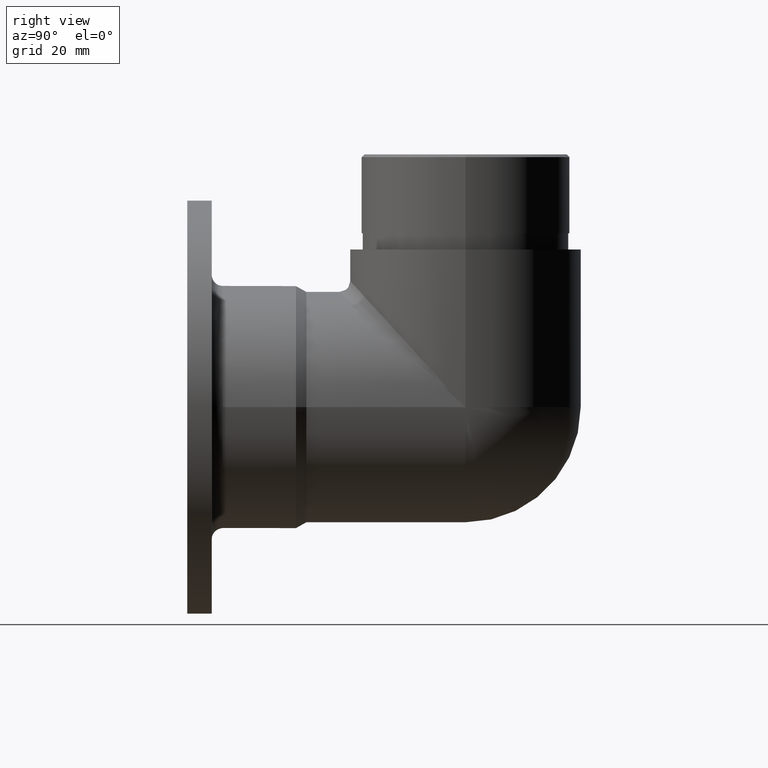
[diagram: clean part render]
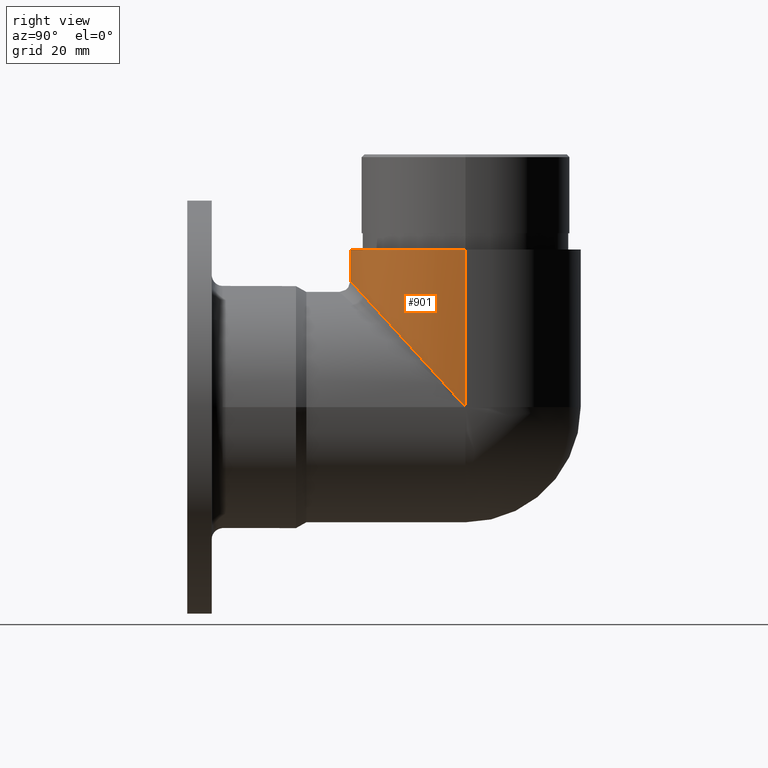
[diagram: same view with one face highlighted and labeled with its STEP entity id]
A machine part, right view. The second image highlights one B-rep face of the part: STEP entity #901.
In plain terms, the highlighted cylindrical surface (partial cylindrical patch) has radius 21.2 mm, axis along (0, -0, 1).
Its self-contained STEP definition (entity closure, byte-faithful):
#239 = CARTESIAN_POINT ( 'NONE',  ( 6.938893903907228400E-015, 30.00000000000002800, 23.19999999999999900 ) ) ;
#417 = EDGE_CURVE ( 'NONE', #12709, #2117, #6216, .T. ) ;
#794 = DIRECTION ( 'NONE',  ( 0.0000000000000000000, -1.000000000000000000, -1.636531581110195400E-016 ) ) ;
#901 = ADVANCED_FACE ( 'NONE', ( #13853 ), #5370, .T. ) ;
#1234 = EDGE_CURVE ( 'NONE', #12709, #9544, #15022, .T. ) ;
#1784 = CARTESIAN_POINT ( 'NONE',  ( 6.938893903907228400E-015, 51.20000000000002400, 21.19999999999999900 ) ) ;
#2117 = VERTEX_POINT ( 'NONE', #13033 ) ;
#2153 = DIRECTION ( 'NONE',  ( 0.0000000000000000000, -2.392722035830079000E-016, 1.000000000000000000 ) ) ;
#2255 = DIRECTION ( 'NONE',  ( 0.0000000000000000000, -2.392722035830079000E-016, 1.000000000000000000 ) ) ;
#5190 = CARTESIAN_POINT ( 'NONE',  ( 21.19999999999999900, 38.78132752230964500, 13.59024535294418700 ) ) ;
#5370 = CYLINDRICAL_SURFACE ( 'NONE', #10740, 21.19999999999999900 ) ;
#5691 = DIRECTION ( 'NONE',  ( 0.0000000000000000000, -2.392722035830079000E-016, 1.000000000000000000 ) ) ;
#6216 =( BOUNDED_CURVE ( )  B_SPLINE_CURVE ( 3, ( #239, #15024, #5190, #13813 ),
 .UNSPECIFIED., .F., .T. ) 
 B_SPLINE_CURVE_WITH_KNOTS ( ( 4, 4 ),
 ( 0.0000000000000000000, 1.570796326794896800 ),
 .UNSPECIFIED. ) 
 CURVE ( )  GEOMETRIC_REPRESENTATION_ITEM ( )  RATIONAL_B_SPLINE_CURVE ( ( 1.000000000000000000, 0.8047378541243649400, 0.8047378541243649400, 1.000000000000000000 ) ) 
 REPRESENTATION_ITEM ( '' )  );
#6282 = CARTESIAN_POINT ( 'NONE',  ( 21.20000000000000600, 51.20000000000002400, -19.38132752230961800 ) ) ;
#6884 = EDGE_CURVE ( 'NONE', #9544, #14321, #15655, .T. ) ;
#7644 = CARTESIAN_POINT ( 'NONE',  ( 6.938893903907228400E-015, 30.00000000000002800, 23.19999999999999900 ) ) ;
#7812 = EDGE_CURVE ( 'NONE', #2117, #14321, #11941, .T. ) ;
#7983 = CARTESIAN_POINT ( 'NONE',  ( 6.938893903907228400E-015, 30.00000000000002500, 28.99999999999998900 ) ) ;
#8111 = ORIENTED_EDGE ( 'NONE', *, *, #1234, .F. ) ;
#9078 = DIRECTION ( 'NONE',  ( 0.0000000000000000000, -1.000000000000000000, -1.636531581110195400E-016 ) ) ;
#9544 = VERTEX_POINT ( 'NONE', #7983 ) ;
#9698 = ORIENTED_EDGE ( 'NONE', *, *, #417, .T. ) ;
#10180 = ORIENTED_EDGE ( 'NONE', *, *, #7812, .T. ) ;
#10740 = AXIS2_PLACEMENT_3D ( 'NONE', #1784, #15259, #9078 ) ;
#11718 = CARTESIAN_POINT ( 'NONE',  ( 21.20000000000000600, 51.20000000000001000, 29.00000000000000000 ) ) ;
#11941 = LINE ( 'NONE', #6282, #13675 ) ;
#12709 = VERTEX_POINT ( 'NONE', #7644 ) ;
#13008 = CARTESIAN_POINT ( 'NONE',  ( 6.938893903907228400E-015, 30.00000000000002800, 21.19999999999999600 ) ) ;
#13033 = CARTESIAN_POINT ( 'NONE',  ( 21.20000000000000600, 51.20000000000002400, -3.469446951953614200E-015 ) ) ;
#13254 = VECTOR ( 'NONE', #5691, 1000.000000000000000 ) ;
#13675 = VECTOR ( 'NONE', #2255, 1000.000000000000000 ) ;
#13714 = ORIENTED_EDGE ( 'NONE', *, *, #6884, .F. ) ;
#13792 = EDGE_LOOP ( 'NONE', ( #8111, #9698, #10180, #13714 ) ) ;
#13813 = CARTESIAN_POINT ( 'NONE',  ( 21.20000000000000600, 51.20000000000002400, -3.469446951953614200E-015 ) ) ;
#13853 = FACE_OUTER_BOUND ( 'NONE', #13792, .T. ) ;
#14321 = VERTEX_POINT ( 'NONE', #11718 ) ;
#15022 = LINE ( 'NONE', #13008, #13254 ) ;
#15024 = CARTESIAN_POINT ( 'NONE',  ( 12.41867247769038600, 30.00000000000002800, 23.19999999999999600 ) ) ;
#15231 = AXIS2_PLACEMENT_3D ( 'NONE', #15636, #2153, #794 ) ;
#15259 = DIRECTION ( 'NONE',  ( 0.0000000000000000000, -2.392722035830079000E-016, 1.000000000000000000 ) ) ;
#15636 = CARTESIAN_POINT ( 'NONE',  ( 6.938893903907228400E-015, 51.20000000000002400, 28.99999999999999300 ) ) ;
#15655 = CIRCLE ( 'NONE', #15231, 21.19999999999999900 ) ;